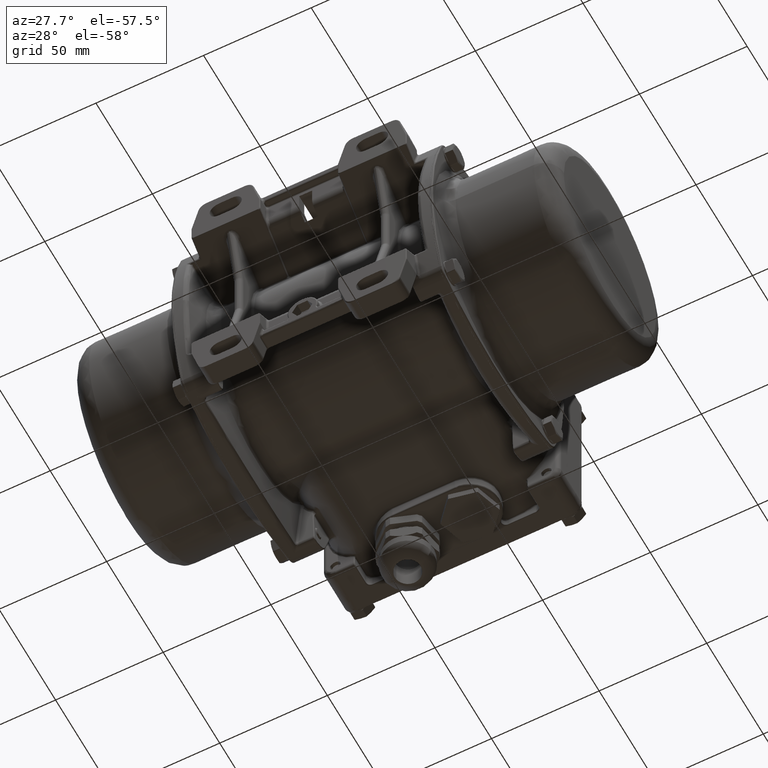
[diagram: clean part render]
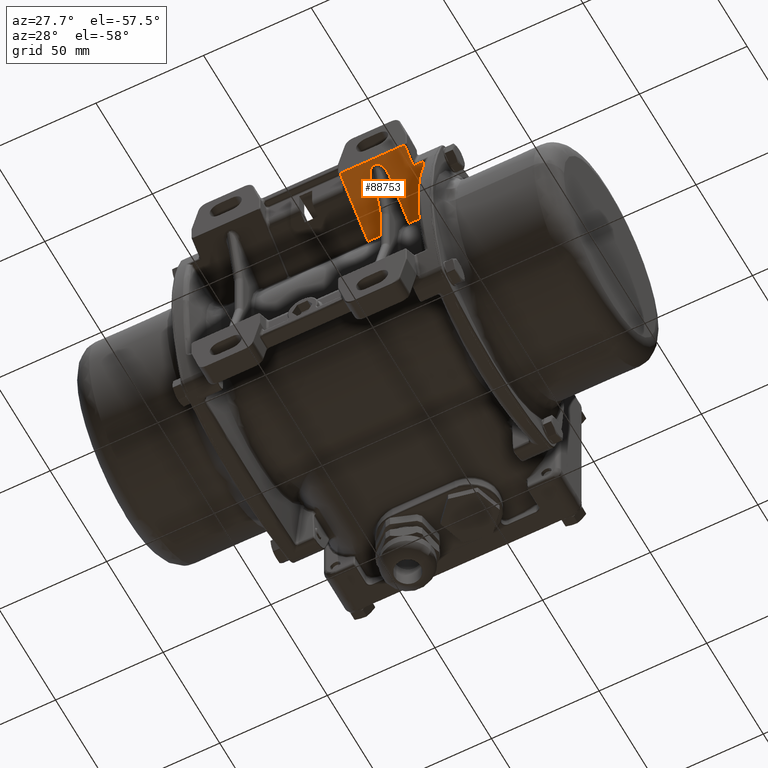
[diagram: same view with one face highlighted and labeled with its STEP entity id]
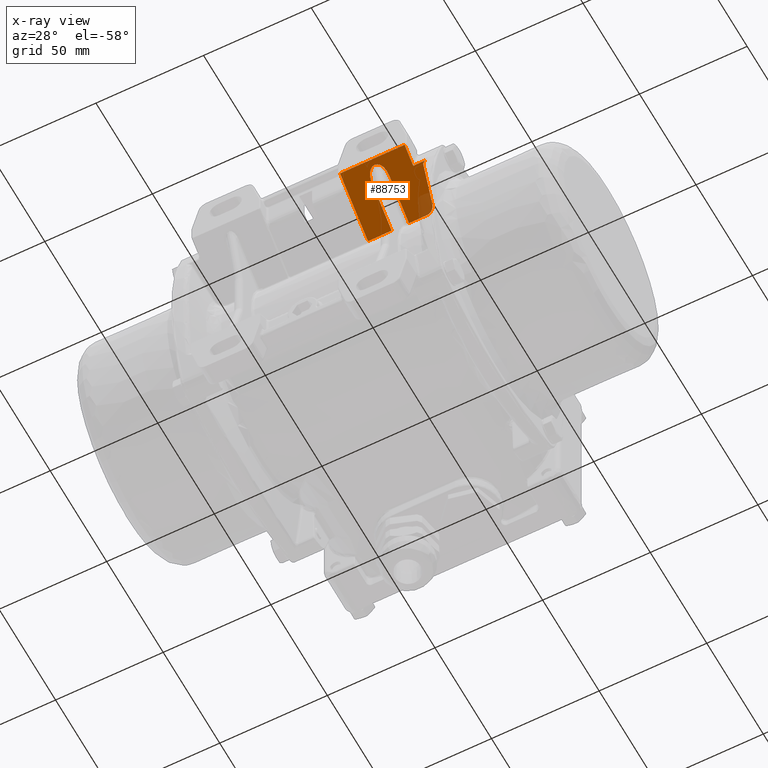
[diagram: x-ray of the same camera — body ghosted, the highlighted face saturated]
A machine part, auxiliary view. The second image highlights one B-rep face of the part: STEP entity #88753.
The next image is the same camera in x-ray: the body ghosted, the highlighted face saturated — about 7% of this face is hidden behind the body in this view.
In plain terms, the highlighted planar face has unit normal (-0, 0.5736, 0.8192).
Its self-contained STEP definition (entity closure, byte-faithful):
#303 = CARTESIAN_POINT ( 'NONE',  ( 120.7929603842946600, -87.19892830831769000, 24.38461357296634400 ) ) ;
#1030 = CARTESIAN_POINT ( 'NONE',  ( 120.3846427171996300, -86.08024567499514000, 23.60130356024964000 ) ) ;
#1913 = LINE ( 'NONE', #96853, #175221 ) ;
#2194 = DIRECTION ( 'NONE',  ( -1.000000000000000000, -6.123032000000000300E-017, -4.429664172539200000E-032 ) ) ;
#4875 = EDGE_CURVE ( 'NONE', #177525, #186013, #90833, .T. ) ;
#6670 = CARTESIAN_POINT ( 'NONE',  ( 104.6310839910176200, -107.1868323038406900, 38.38029462364359300 ) ) ;
#7859 = CARTESIAN_POINT ( 'NONE',  ( 116.8044889728554500, -84.45032941055814000, 22.46002390524025200 ) ) ;
#8623 = CARTESIAN_POINT ( 'NONE',  ( 124.6777506085402800, -101.4928849723404300, 34.39334977995801500 ) ) ;
#9094 = FACE_OUTER_BOUND ( 'NONE', #149876, .T. ) ;
#9571 = CARTESIAN_POINT ( 'NONE',  ( 105.4335897899673100, -107.0675866056771900, 38.29679788689050200 ) ) ;
#10074 = CARTESIAN_POINT ( 'NONE',  ( 124.1720077513799400, -101.2390303875970000, 34.21559888611158600 ) ) ;
#17894 = CARTESIAN_POINT ( 'NONE',  ( 118.2208806265051500, -84.58714048017739600, 22.55582004749815900 ) ) ;
#20037 = EDGE_CURVE ( 'NONE', #130634, #177525, #77742, .T. ) ;
#20278 = CARTESIAN_POINT ( 'NONE',  ( 100.5000128712578700, -96.86856446866373500, 31.15536570418588600 ) ) ;
#23024 = B_SPLINE_CURVE_WITH_KNOTS ( 'NONE', 3,
 ( #98616, #36277, #133129, #35557, #137516, #36975, #169814, #154417, #187430, #155118, #152961, #172702 ),
 .UNSPECIFIED., .F., .F.,
 ( 4, 1, 1, 1, 1, 1, 1, 1, 1, 4 ),
 ( 0.0000000000000000000, 0.04251858362355551800, 0.08610363588085159800, 0.1797441390955712700, 0.2862274398618645000, 0.4072341452424626000, 0.5420263579402420100, 0.6882098620300903800, 0.8422756475316040000, 1.000000000000000000 ),
 .UNSPECIFIED. ) ;
#23447 = CARTESIAN_POINT ( 'NONE',  ( 104.5000128712580900, -107.1870162966815300, 38.38042345681773800 ) ) ;
#23511 = CARTESIAN_POINT ( 'NONE',  ( 108.2267901070934600, -104.0282903975264800, 36.16865977109117800 ) ) ;
#23832 = CARTESIAN_POINT ( 'NONE',  ( 123.6729547992077000, -100.6020673551591400, 33.76959256923767300 ) ) ;
#24129 = ORIENTED_EDGE ( 'NONE', *, *, #179428, .F. ) ;
#24982 = CARTESIAN_POINT ( 'NONE',  ( 106.0891493004189100, -106.8038397704201300, 38.11212036466437800 ) ) ;
#27532 = ORIENTED_EDGE ( 'NONE', *, *, #31635, .F. ) ;
#29359 = CARTESIAN_POINT ( 'NONE',  ( 100.5000128713804300, -84.48831190902561200, 22.48661953698738700 ) ) ;
#30481 = VERTEX_POINT ( 'NONE', #40644 ) ;
#30695 = EDGE_CURVE ( 'NONE', #167984, #30481, #1913, .T. ) ;
#31190 = CARTESIAN_POINT ( 'NONE',  ( 120.7929603842946600, -87.19892830831769000, 24.38461357296635900 ) ) ;
#31635 = EDGE_CURVE ( 'NONE', #93933, #52408, #125130, .T. ) ;
#32043 = VERTEX_POINT ( 'NONE', #148054 ) ;
#32754 = EDGE_CURVE ( 'NONE', #186013, #80740, #148042, .T. ) ;
#33130 = VECTOR ( 'NONE', #132481, 1000.000000000000000 ) ;
#34023 = VECTOR ( 'NONE', #205512, 1000.000000000000200 ) ;
#35557 = CARTESIAN_POINT ( 'NONE',  ( 103.5664359525492100, -107.0675866056765000, 38.29679788688989800 ) ) ;
#36277 = CARTESIAN_POINT ( 'NONE',  ( 104.3689417514985800, -107.1868323038376800, 38.38029462364153900 ) ) ;
#36975 = CARTESIAN_POINT ( 'NONE',  ( 102.2219372871252600, -106.3187764515191800, 37.77247537226101300 ) ) ;
#39355 = CARTESIAN_POINT ( 'NONE',  ( 123.8071255466090000, -101.0250505805428100, 34.06576861220791800 ) ) ;
#39700 = CARTESIAN_POINT ( 'NONE',  ( 107.8643733533883900, -104.9057456218078200, 36.78306053357435000 ) ) ;
#40644 = CARTESIAN_POINT ( 'NONE',  ( 119.5000128712652100, -101.6111474033966300, 34.47615802825119900 ) ) ;
#40888 = ORIENTED_EDGE ( 'NONE', *, *, #30695, .F. ) ;
#41151 = LINE ( 'NONE', #20278, #56904 ) ;
#42654 = VECTOR ( 'NONE', #95477, 1000.000000000000000 ) ;
#44519 = CARTESIAN_POINT ( 'NONE',  ( 124.0038718088453900, -101.1468749429248000, 34.15107094906503700 ) ) ;
#45010 = CARTESIAN_POINT ( 'NONE',  ( 108.5000128712580900, -102.0895188841943500, 34.81111734258967500 ) ) ;
#45452 = ORIENTED_EDGE ( 'NONE', *, *, #4875, .F. ) ;
#48671 = PLANE ( 'NONE',  #177852 ) ;
#50368 = ORIENTED_EDGE ( 'NONE', *, *, #111890, .F. ) ;
#51658 = CARTESIAN_POINT ( 'NONE',  ( 117.2738476681496300, -84.45040906995322400, 22.46007968334921800 ) ) ;
#52290 = VERTEX_POINT ( 'NONE', #170198 ) ;
#52408 = VERTEX_POINT ( 'NONE', #168023 ) ;
#56904 = VECTOR ( 'NONE', #139141, 1000.000000000000000 ) ;
#58334 = CARTESIAN_POINT ( 'NONE',  ( 123.6729547992077000, -100.6020673551591400, 33.76959256923767300 ) ) ;
#60050 = B_SPLINE_CURVE_WITH_KNOTS ( 'NONE', 3,
 ( #91776, #75670, #125570, #23511, #39700, #160032, #175450, #24982, #9571, #76366, #6670, #157157 ),
 .UNSPECIFIED., .F., .F.,
 ( 4, 1, 1, 1, 1, 1, 1, 1, 1, 4 ),
 ( 0.0000000000000000000, 0.1577243524683967500, 0.3117901379699139500, 0.4579736420597699300, 0.5927658547575305200, 0.7137725601381179600, 0.8202558609044458000, 0.9138963641191667500, 0.9574814163764441300, 1.000000000000000000 ),
 .UNSPECIFIED. ) ;
#61392 = CARTESIAN_POINT ( 'NONE',  ( 124.3492973820848400, -101.3313228521120500, 34.28022276548496400 ) ) ;
#67834 = CARTESIAN_POINT ( 'NONE',  ( 120.7117183794413200, -86.82022935929930400, 24.11944571415160600 ) ) ;
#68273 = CARTESIAN_POINT ( 'NONE',  ( 107.2156618566116900, -84.48831190902564000, 22.48661953698721700 ) ) ;
#68544 = CARTESIAN_POINT ( 'NONE',  ( 116.8044889728554500, -84.45032941055814000, 22.46002390524025200 ) ) ;
#75670 = CARTESIAN_POINT ( 'NONE',  ( 108.5008953969105500, -102.4216730076468500, 35.04369416367855900 ) ) ;
#76366 = CARTESIAN_POINT ( 'NONE',  ( 104.8978566755983600, -107.1701398079242000, 38.36860641217129600 ) ) ;
#76450 = CARTESIAN_POINT ( 'NONE',  ( 123.1034041629748300, -101.6111474046091400, 34.47615802651957800 ) ) ;
#76711 = CARTESIAN_POINT ( 'NONE',  ( 123.7288523228270400, -100.8159503334307800, 33.91935504291816300 ) ) ;
#76796 = ORIENTED_EDGE ( 'NONE', *, *, #206091, .F. ) ;
#76875 = CARTESIAN_POINT ( 'NONE',  ( 124.3541214351540100, -101.3337753662282100, 34.28194003435665800 ) ) ;
#77742 = LINE ( 'NONE', #31190, #33130 ) ;
#78326 = CARTESIAN_POINT ( 'NONE',  ( 124.3322575547179000, -101.3226361011632400, 34.27414023698804600 ) ) ;
#78631 = LINE ( 'NONE', #186438, #34023 ) ;
#80740 = VERTEX_POINT ( 'NONE', #158125 ) ;
#81886 = CARTESIAN_POINT ( 'NONE',  ( 108.5000128712583200, -96.86856446866376300, 31.15536570418588600 ) ) ;
#82420 = DIRECTION ( 'NONE',  ( -3.512026874223426100E-017, 0.5735764363510467100, 0.8191520442889914700 ) ) ;
#84700 = VECTOR ( 'NONE', #94925, 1000.000000000000000 ) ;
#86251 = CARTESIAN_POINT ( 'NONE',  ( 107.2156618566120200, -84.45032941055815500, 22.46002390524023800 ) ) ;
#88753 = ADVANCED_FACE ( 'NONE', ( #9094 ), #48671, .F. ) ;
#90833 = B_SPLINE_CURVE_WITH_KNOTS ( 'NONE', 3,
 ( #303, #67834, #1030, #118465, #17894, #51658, #68544 ),
 .UNSPECIFIED., .F., .F.,
 ( 4, 1, 1, 1, 4 ),
 ( 0.0000000000000000000, 0.2501791070549104800, 0.5002000134402445600, 0.7501255283626604400, 1.000000000000000000 ),
 .UNSPECIFIED. ) ;
#91692 = CARTESIAN_POINT ( 'NONE',  ( 120.7929603842946600, -87.19892830831769000, 24.38461357296634400 ) ) ;
#91776 = CARTESIAN_POINT ( 'NONE',  ( 108.5000128712580900, -102.0895188841943500, 34.81111734258967500 ) ) ;
#92232 = ORIENTED_EDGE ( 'NONE', *, *, #20037, .F. ) ;
#93586 = CARTESIAN_POINT ( 'NONE',  ( 123.6806642126557800, -100.6379251056837300, 33.79470043645823600 ) ) ;
#93933 = VERTEX_POINT ( 'NONE', #29359 ) ;
#94925 = DIRECTION ( 'NONE',  ( 1.000000000000000000, 6.123032000000000300E-017, 4.429664172539200000E-032 ) ) ;
#95175 = CARTESIAN_POINT ( 'NONE',  ( 124.4860320843027500, -101.4007689889648100, 34.32884947400881300 ) ) ;
#95477 = DIRECTION ( 'NONE',  ( 1.000000000000000000, 6.123032000000000300E-017, 4.429664172539200000E-032 ) ) ;
#96853 = CARTESIAN_POINT ( 'NONE',  ( 119.5000128712581100, -96.86856446866379100, 31.15536570418588600 ) ) ;
#98616 = CARTESIAN_POINT ( 'NONE',  ( 104.5000128712580900, -107.1870162966815300, 38.38042345681773800 ) ) ;
#100249 = DIRECTION ( 'NONE',  ( -1.000000000000000000, -6.123032000000000300E-017, -4.429664172539200000E-032 ) ) ;
#103158 = LINE ( 'NONE', #76450, #42654 ) ;
#107205 = VECTOR ( 'NONE', #100249, 1000.000000000000000 ) ;
#107929 = VERTEX_POINT ( 'NONE', #108382 ) ;
#108382 = CARTESIAN_POINT ( 'NONE',  ( 124.9313960916775800, -101.6111393998371300, 34.47620178478808800 ) ) ;
#110611 = CARTESIAN_POINT ( 'NONE',  ( 123.8803358898980900, -101.0725391111631700, 34.09902043930644300 ) ) ;
#110842 = EDGE_CURVE ( 'NONE', #164719, #208344, #60050, .T. ) ;
#111890 = EDGE_CURVE ( 'NONE', #52408, #133507, #78631, .T. ) ;
#112547 = CARTESIAN_POINT ( 'NONE',  ( 107.2156618566120200, -109.2867995267691700, 39.85070750313138900 ) ) ;
#112587 = VECTOR ( 'NONE', #199352, 1000.000000000000200 ) ;
#116213 = ORIENTED_EDGE ( 'NONE', *, *, #211495, .F. ) ;
#117355 = VECTOR ( 'NONE', #2194, 1000.000000000000000 ) ;
#118465 = CARTESIAN_POINT ( 'NONE',  ( 119.4629473949006000, -85.17792892667198100, 22.96949457122096700 ) ) ;
#119250 = EDGE_CURVE ( 'NONE', #32043, #130634, #150060, .T. ) ;
#124828 = EDGE_CURVE ( 'NONE', #32043, #107929, #148577, .T. ) ;
#125094 = ORIENTED_EDGE ( 'NONE', *, *, #142710, .F. ) ;
#125130 = LINE ( 'NONE', #68273, #117355 ) ;
#125202 = CARTESIAN_POINT ( 'NONE',  ( 123.7650129703155000, -100.9212747805488800, 33.99310401474801300 ) ) ;
#125570 = CARTESIAN_POINT ( 'NONE',  ( 108.4493278084279800, -103.0791824530047300, 35.50408723376219900 ) ) ;
#128566 = EDGE_CURVE ( 'NONE', #30481, #107929, #103158, .T. ) ;
#130634 = VERTEX_POINT ( 'NONE', #23832 ) ;
#131349 = ORIENTED_EDGE ( 'NONE', *, *, #32754, .F. ) ;
#131616 = CARTESIAN_POINT ( 'NONE',  ( 89.49901287121065300, -84.44951025847500100, 22.45945032877666500 ) ) ;
#132481 = DIRECTION ( 'NONE',  ( -0.1733500852003067600, 0.8067503020691650900, -0.5648926429617908700 ) ) ;
#133116 = DIRECTION ( 'NONE',  ( 5.015694180046908700E-017, -0.8191520442889913500, 0.5735764363510466000 ) ) ;
#133129 = CARTESIAN_POINT ( 'NONE',  ( 104.1021690669180500, -107.1701398079254100, 38.36860641217224800 ) ) ;
#133507 = VERTEX_POINT ( 'NONE', #167551 ) ;
#137516 = CARTESIAN_POINT ( 'NONE',  ( 102.9108764420969900, -106.8038397704203700, 38.11212036466466200 ) ) ;
#139141 = DIRECTION ( 'NONE',  ( -5.015694180046897700E-017, 0.8191520442889894700, -0.5735764363510494900 ) ) ;
#142710 = EDGE_CURVE ( 'NONE', #52290, #93933, #41151, .T. ) ;
#142950 = CARTESIAN_POINT ( 'NONE',  ( 124.2620783985878600, -101.2864656868374000, 34.24881344021691400 ) ) ;
#147561 = CARTESIAN_POINT ( 'NONE',  ( 119.5000128715284500, -109.2867995253142200, 39.85070750520928600 ) ) ;
#148042 = LINE ( 'NONE', #86251, #107205 ) ;
#148054 = CARTESIAN_POINT ( 'NONE',  ( 123.8071255466090000, -101.0250505805428100, 34.06576861220791800 ) ) ;
#148577 = B_SPLINE_CURVE_WITH_KNOTS ( 'NONE', 3,
 ( #169480, #110611, #44519, #10074, #142950, #176672, #78326, #161261, #61392, #76875, #95175, #8623, #194296 ),
 .UNSPECIFIED., .F., .F.,
 ( 4, 1, 1, 1, 1, 1, 2, 2, 4 ),
 ( 0.0000000000000000000, 0.2499999999999534800, 0.3749999999999349400, 0.4374999999999191800, 0.4687499999998974700, 0.4843749999998886400, 0.4921874999998668800, 0.4999999999998451200, 1.000000000000000000 ),
 .UNSPECIFIED. ) ;
#149876 = EDGE_LOOP ( 'NONE', ( #131349, #45452, #92232, #187028, #202919, #206635, #40888, #116213, #50368, #27532, #125094, #76796, #207412, #24129 ) ) ;
#150060 = B_SPLINE_CURVE_WITH_KNOTS ( 'NONE', 3,
 ( #39355, #189093, #125202, #76711, #194137, #93586, #58334 ),
 .UNSPECIFIED., .F., .F.,
 ( 4, 1, 1, 1, 4 ),
 ( 0.0000000000000000000, 0.2501541230394706500, 0.5002421191817623100, 0.7502076030348563400, 1.000000000000000000 ),
 .UNSPECIFIED. ) ;
#152961 = CARTESIAN_POINT ( 'NONE',  ( 100.4991303456051800, -102.4216730076468500, 35.04369416367855900 ) ) ;
#154417 = CARTESIAN_POINT ( 'NONE',  ( 101.1356523891275100, -104.9057456218078200, 36.78306053357442100 ) ) ;
#155118 = CARTESIAN_POINT ( 'NONE',  ( 100.5506979340887000, -103.0791824530046800, 35.50408723376217100 ) ) ;
#157157 = CARTESIAN_POINT ( 'NONE',  ( 104.5000128712580900, -107.1870162966815300, 38.38042345681773800 ) ) ;
#158125 = CARTESIAN_POINT ( 'NONE',  ( 108.5000128711359800, -84.45032941055815500, 22.46002390524024900 ) ) ;
#160032 = CARTESIAN_POINT ( 'NONE',  ( 107.3761531820319700, -105.6784691798234100, 37.32412739384916700 ) ) ;
#161261 = CARTESIAN_POINT ( 'NONE',  ( 124.3424707320738800, -101.3278457274881000, 34.27778805661196100 ) ) ;
#164719 = VERTEX_POINT ( 'NONE', #45010 ) ;
#167551 = CARTESIAN_POINT ( 'NONE',  ( 89.50001287119712900, -109.2867995267692000, 39.85070750313158100 ) ) ;
#167984 = VERTEX_POINT ( 'NONE', #147561 ) ;
#168023 = CARTESIAN_POINT ( 'NONE',  ( 89.50001287102693900, -84.48831190902566800, 22.48661953698725900 ) ) ;
#169480 = CARTESIAN_POINT ( 'NONE',  ( 123.8071255466090000, -101.0250505805428100, 34.06576861220791800 ) ) ;
#169814 = CARTESIAN_POINT ( 'NONE',  ( 101.6238725604838200, -105.6784691798235100, 37.32412739384915300 ) ) ;
#170198 = CARTESIAN_POINT ( 'NONE',  ( 100.5000128712579800, -102.0895188841944000, 34.81111734258968900 ) ) ;
#172702 = CARTESIAN_POINT ( 'NONE',  ( 100.5000128712579800, -102.0895188841944000, 34.81111734258968900 ) ) ;
#175221 = VECTOR ( 'NONE', #181986, 1000.000000000000200 ) ;
#175450 = CARTESIAN_POINT ( 'NONE',  ( 106.7780884553912700, -106.3187764515195000, 37.77247537226119100 ) ) ;
#176672 = CARTESIAN_POINT ( 'NONE',  ( 124.3086143911770400, -101.3105227306836200, 34.26565836366508900 ) ) ;
#177525 = VERTEX_POINT ( 'NONE', #91692 ) ;
#177852 = AXIS2_PLACEMENT_3D ( 'NONE', #131616, #82420, #133116 ) ;
#179428 = EDGE_CURVE ( 'NONE', #80740, #164719, #207204, .T. ) ;
#181986 = DIRECTION ( 'NONE',  ( -5.015694180046908100E-017, 0.8191520442889912400, -0.5735764363510468300 ) ) ;
#186013 = VERTEX_POINT ( 'NONE', #7859 ) ;
#186438 = CARTESIAN_POINT ( 'NONE',  ( 89.50001287125819300, -96.86856446866379100, 31.15536570418588300 ) ) ;
#187028 = ORIENTED_EDGE ( 'NONE', *, *, #119250, .F. ) ;
#187083 = LINE ( 'NONE', #112547, #84700 ) ;
#187430 = CARTESIAN_POINT ( 'NONE',  ( 100.7732356354227800, -104.0282903975265900, 36.16865977109115700 ) ) ;
#189093 = CARTESIAN_POINT ( 'NONE',  ( 123.7925250807158100, -100.9906139565375700, 34.04165582846862700 ) ) ;
#194137 = CARTESIAN_POINT ( 'NONE',  ( 123.6978620177493400, -100.7095279490340100, 33.84483728712937300 ) ) ;
#194296 = CARTESIAN_POINT ( 'NONE',  ( 124.9313960916775800, -101.6111393998371300, 34.47620178478808800 ) ) ;
#199352 = DIRECTION ( 'NONE',  ( 5.015694180046908100E-017, -0.8191520442889912400, 0.5735764363510468300 ) ) ;
#202919 = ORIENTED_EDGE ( 'NONE', *, *, #124828, .T. ) ;
#205512 = DIRECTION ( 'NONE',  ( 5.015694180046908100E-017, -0.8191520442889912400, 0.5735764363510468300 ) ) ;
#206091 = EDGE_CURVE ( 'NONE', #208344, #52290, #23024, .T. ) ;
#206635 = ORIENTED_EDGE ( 'NONE', *, *, #128566, .F. ) ;
#207204 = LINE ( 'NONE', #81886, #112587 ) ;
#207412 = ORIENTED_EDGE ( 'NONE', *, *, #110842, .F. ) ;
#208344 = VERTEX_POINT ( 'NONE', #23447 ) ;
#211495 = EDGE_CURVE ( 'NONE', #133507, #167984, #187083, .T. ) ;